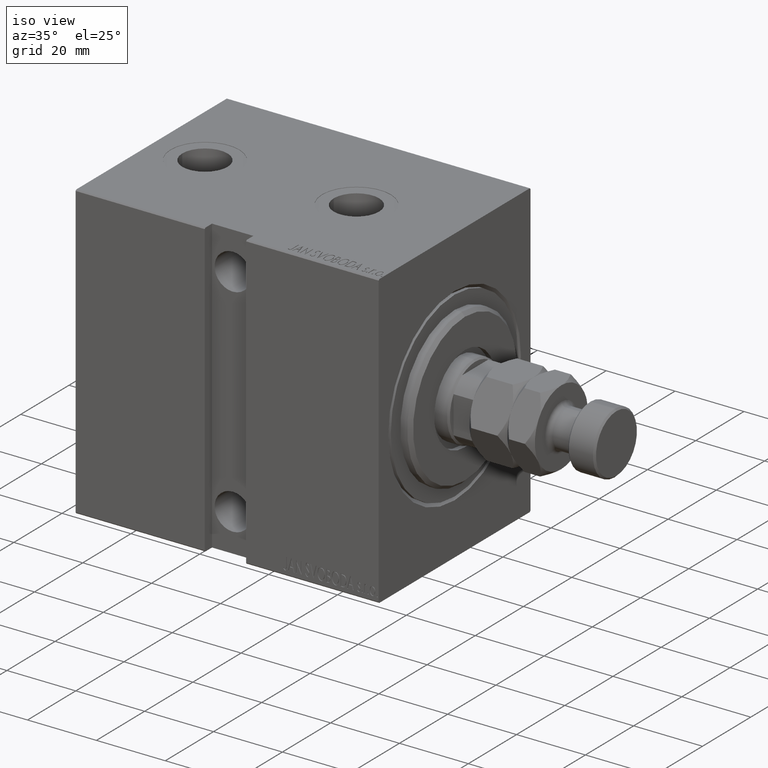
[diagram: clean part render]
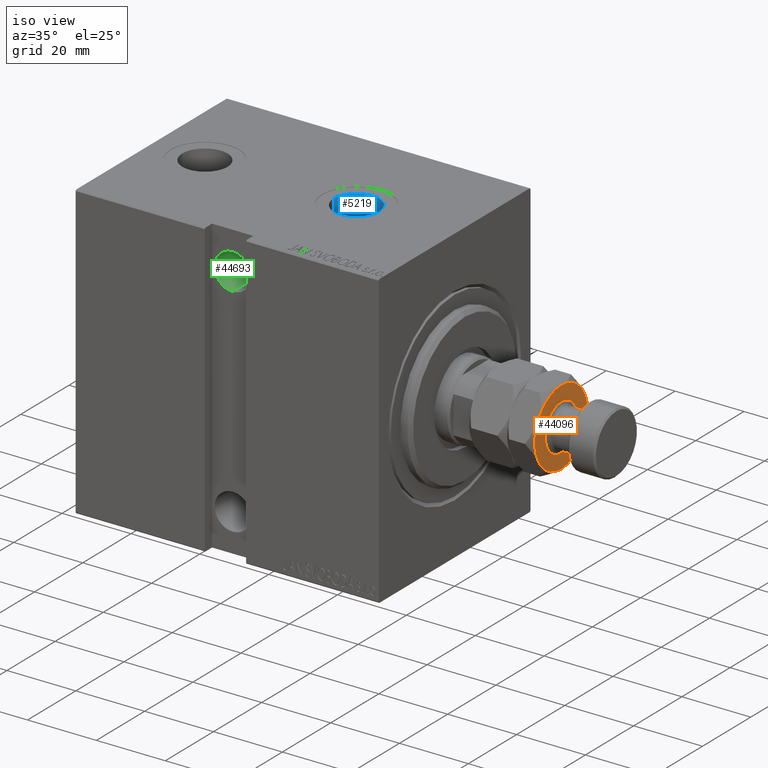
[diagram: same view with three faces highlighted in distinct colors, each labeled with its STEP entity id]
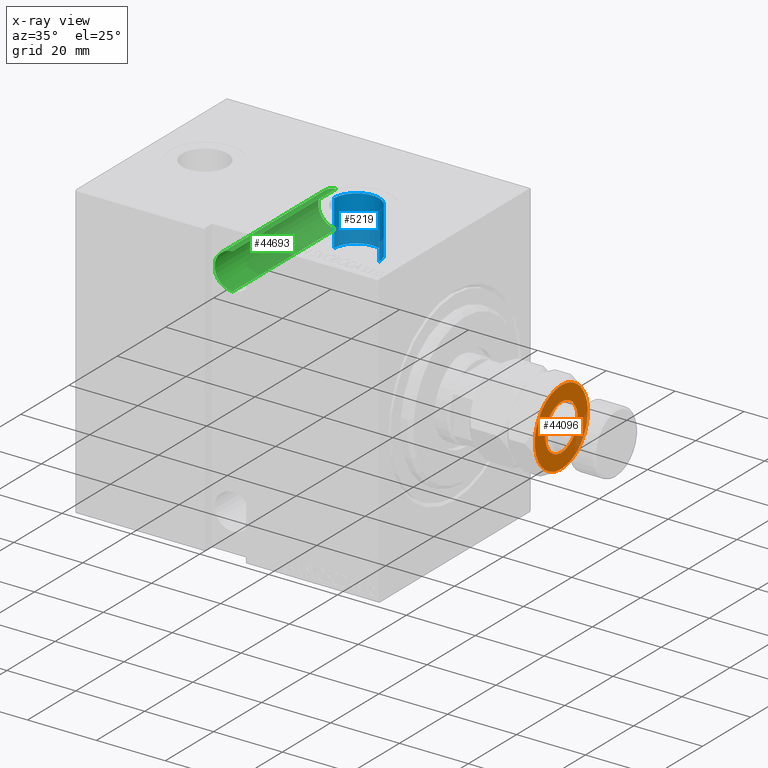
[diagram: x-ray of the same camera — body ghosted, the three highlighted faces saturated]
A machine part, iso view with three faces highlighted in distinct colors.
The next image is the same camera in x-ray (body ghosted, the three faces saturated) — at least one of them is partly hidden behind the body in this view.
Their STEP definitions:

[orange] entity #44096 — the highlighted planar face has unit normal (1, 0, -0).
#228 = CIRCLE ( 'NONE', #26035, 10.99999999999999289 ) ;
#926 = EDGE_CURVE ( 'NONE', #8722, #35789, #228, .T. ) ;
#1948 = EDGE_CURVE ( 'NONE', #38744, #30098, #20172, .T. ) ;
#2466 = DIRECTION ( 'NONE',  ( 0.000000000000000000, -0.000000000000000000, 1.000000000000000000 ) ) ;
#2862 = CARTESIAN_POINT ( 'NONE',  ( -6.699999999999999289, 8.205133554287265576E-16, 19.00000000000000000 ) ) ;
#3130 = DIRECTION ( 'NONE',  ( 0.000000000000000000, -0.000000000000000000, 1.000000000000000000 ) ) ;
#3864 = CARTESIAN_POINT ( 'NONE',  ( 0.000000000000000000, 0.000000000000000000, 19.00000000000000000 ) ) ;
#4231 = EDGE_CURVE ( 'NONE', #20887, #38744, #27585, .T. ) ;
#5482 = EDGE_LOOP ( 'NONE', ( #38574, #27490, #36172, #25081, #6296, #38009 ) ) ;
#6164 = DIRECTION ( 'NONE',  ( 1.000000000000000000, 0.000000000000000000, 0.000000000000000000 ) ) ;
#6296 = ORIENTED_EDGE ( 'NONE', *, *, #926, .T. ) ;
#7556 = FACE_OUTER_BOUND ( 'NONE', #5482, .T. ) ;
#8198 = EDGE_CURVE ( 'NONE', #35789, #20887, #16540, .T. ) ;
#8722 = VERTEX_POINT ( 'NONE', #26576 ) ;
#9508 = CARTESIAN_POINT ( 'NONE',  ( 5.499999999999999112, 9.526279441628817679, 19.00000000000000000 ) ) ;
#10650 = DIRECTION ( 'NONE',  ( 0.000000000000000000, 0.000000000000000000, 1.000000000000000000 ) ) ;
#10950 = EDGE_CURVE ( 'NONE', #37296, #39231, #30647, .T. ) ;
#12047 = AXIS2_PLACEMENT_3D ( 'NONE', #3864, #31797, #42679 ) ;
#12201 = CARTESIAN_POINT ( 'NONE',  ( 0.000000000000000000, 0.000000000000000000, 19.00000000000000000 ) ) ;
#12416 = DIRECTION ( 'NONE',  ( 1.000000000000000000, 0.000000000000000000, 0.000000000000000000 ) ) ;
#14251 = FACE_BOUND ( 'NONE', #27285, .T. ) ;
#16540 = CIRCLE ( 'NONE', #19583, 10.99999999999999289 ) ;
#17891 = DIRECTION ( 'NONE',  ( 1.000000000000000000, 0.000000000000000000, 0.000000000000000000 ) ) ;
#18555 = DIRECTION ( 'NONE',  ( 0.000000000000000000, -0.000000000000000000, 1.000000000000000000 ) ) ;
#19408 = AXIS2_PLACEMENT_3D ( 'NONE', #30328, #29870, #43994 ) ;
#19583 = AXIS2_PLACEMENT_3D ( 'NONE', #33433, #29972, #12416 ) ;
#19590 = DIRECTION ( 'NONE',  ( -0.000000000000000000, 0.000000000000000000, -1.000000000000000000 ) ) ;
#20172 = CIRCLE ( 'NONE', #35635, 10.99999999999999289 ) ;
#20635 = ORIENTED_EDGE ( 'NONE', *, *, #44690, .T. ) ;
#20887 = VERTEX_POINT ( 'NONE', #36700 ) ;
#21038 = CARTESIAN_POINT ( 'NONE',  ( 10.99999999999999289, 1.502314598737159031E-15, 19.00000000000000000 ) ) ;
#21184 = PLANE ( 'NONE',  #12047 ) ;
#22040 = CARTESIAN_POINT ( 'NONE',  ( 6.699999999999999289, 0.000000000000000000, 19.00000000000000000 ) ) ;
#22259 = DIRECTION ( 'NONE',  ( 1.000000000000000000, 0.000000000000000000, 0.000000000000000000 ) ) ;
#22864 = AXIS2_PLACEMENT_3D ( 'NONE', #41280, #2466, #6164 ) ;
#25081 = ORIENTED_EDGE ( 'NONE', *, *, #26859, .T. ) ;
#26035 = AXIS2_PLACEMENT_3D ( 'NONE', #35903, #18555, #22259 ) ;
#26286 = DIRECTION ( 'NONE',  ( 1.000000000000000000, 0.000000000000000000, 0.000000000000000000 ) ) ;
#26576 = CARTESIAN_POINT ( 'NONE',  ( -10.99999999999999289, 0.000000000000000000, 19.00000000000000000 ) ) ;
#26626 = CARTESIAN_POINT ( 'NONE',  ( 0.000000000000000000, 0.000000000000000000, 19.00000000000000000 ) ) ;
#26859 = EDGE_CURVE ( 'NONE', #35542, #8722, #37607, .T. ) ;
#27285 = EDGE_LOOP ( 'NONE', ( #29898, #20635 ) ) ;
#27490 = ORIENTED_EDGE ( 'NONE', *, *, #1948, .T. ) ;
#27511 = CIRCLE ( 'NONE', #28988, 10.99999999999999289 ) ;
#27585 = CIRCLE ( 'NONE', #37953, 10.99999999999999289 ) ;
#27833 = CARTESIAN_POINT ( 'NONE',  ( 0.000000000000000000, 0.000000000000000000, 19.00000000000000000 ) ) ;
#28415 = CARTESIAN_POINT ( 'NONE',  ( -5.500000000000000000, -9.526279441628824785, 19.00000000000000000 ) ) ;
#28988 = AXIS2_PLACEMENT_3D ( 'NONE', #27833, #3130, #17891 ) ;
#29870 = DIRECTION ( 'NONE',  ( -0.000000000000000000, 0.000000000000000000, -1.000000000000000000 ) ) ;
#29898 = ORIENTED_EDGE ( 'NONE', *, *, #10950, .T. ) ;
#29972 = DIRECTION ( 'NONE',  ( 0.000000000000000000, -0.000000000000000000, 1.000000000000000000 ) ) ;
#30098 = VERTEX_POINT ( 'NONE', #9508 ) ;
#30328 = CARTESIAN_POINT ( 'NONE',  ( 0.000000000000000000, 0.000000000000000000, 19.00000000000000000 ) ) ;
#30647 = CIRCLE ( 'NONE', #41713, 6.699999999999999289 ) ;
#31797 = DIRECTION ( 'NONE',  ( 0.000000000000000000, -0.000000000000000000, 1.000000000000000000 ) ) ;
#33433 = CARTESIAN_POINT ( 'NONE',  ( 0.000000000000000000, 0.000000000000000000, 19.00000000000000000 ) ) ;
#35542 = VERTEX_POINT ( 'NONE', #39566 ) ;
#35635 = AXIS2_PLACEMENT_3D ( 'NONE', #35820, #10650, #38604 ) ;
#35789 = VERTEX_POINT ( 'NONE', #28415 ) ;
#35820 = CARTESIAN_POINT ( 'NONE',  ( 0.000000000000000000, 0.000000000000000000, 19.00000000000000000 ) ) ;
#35903 = CARTESIAN_POINT ( 'NONE',  ( 0.000000000000000000, 0.000000000000000000, 19.00000000000000000 ) ) ;
#36172 = ORIENTED_EDGE ( 'NONE', *, *, #39541, .T. ) ;
#36700 = CARTESIAN_POINT ( 'NONE',  ( 5.499999999999998224, -9.526279441628817679, 19.00000000000000000 ) ) ;
#37263 = DIRECTION ( 'NONE',  ( 0.000000000000000000, -0.000000000000000000, 1.000000000000000000 ) ) ;
#37296 = VERTEX_POINT ( 'NONE', #22040 ) ;
#37607 = CIRCLE ( 'NONE', #22864, 10.99999999999999289 ) ;
#37953 = AXIS2_PLACEMENT_3D ( 'NONE', #26626, #37263, #40735 ) ;
#38009 = ORIENTED_EDGE ( 'NONE', *, *, #8198, .T. ) ;
#38574 = ORIENTED_EDGE ( 'NONE', *, *, #4231, .T. ) ;
#38604 = DIRECTION ( 'NONE',  ( 1.000000000000000000, 0.000000000000000000, 0.000000000000000000 ) ) ;
#38744 = VERTEX_POINT ( 'NONE', #21038 ) ;
#39231 = VERTEX_POINT ( 'NONE', #2862 ) ;
#39541 = EDGE_CURVE ( 'NONE', #30098, #35542, #27511, .T. ) ;
#39566 = CARTESIAN_POINT ( 'NONE',  ( -5.499999999999997335, 9.526279441628819455, 19.00000000000000000 ) ) ;
#40086 = CIRCLE ( 'NONE', #19408, 6.699999999999999289 ) ;
#40735 = DIRECTION ( 'NONE',  ( 1.000000000000000000, 0.000000000000000000, 0.000000000000000000 ) ) ;
#41280 = CARTESIAN_POINT ( 'NONE',  ( 0.000000000000000000, 0.000000000000000000, 19.00000000000000000 ) ) ;
#41713 = AXIS2_PLACEMENT_3D ( 'NONE', #12201, #19590, #26286 ) ;
#42679 = DIRECTION ( 'NONE',  ( 1.000000000000000000, 0.000000000000000000, -0.000000000000000000 ) ) ;
#43994 = DIRECTION ( 'NONE',  ( 1.000000000000000000, 0.000000000000000000, 0.000000000000000000 ) ) ;
#44096 = ADVANCED_FACE ( 'NONE', ( #14251, #7556 ), #21184, .T. ) ;
#44690 = EDGE_CURVE ( 'NONE', #39231, #37296, #40086, .T. ) ;

[blue] entity #5219 — the highlighted cylindrical surface (edge-blend (fillet) strip) has radius 6.58 mm, axis along (0, 0, 1).
#551 = VERTEX_POINT ( 'NONE', #11713 ) ;
#1079 = AXIS2_PLACEMENT_3D ( 'NONE', #41599, #16859, #24245 ) ;
#3233 = CYLINDRICAL_SURFACE ( 'NONE', #1079, 6.579999999999999183 ) ;
#5219 = ADVANCED_FACE ( 'NONE', ( #30720 ), #3233, .F. ) ;
#6026 = EDGE_CURVE ( 'NONE', #41705, #17511, #8875, .T. ) ;
#7989 = EDGE_LOOP ( 'NONE', ( #26588, #43016, #12414, #15078 ) ) ;
#8481 = DIRECTION ( 'NONE',  ( 1.000000000000000000, 0.000000000000000000, 0.000000000000000000 ) ) ;
#8875 = LINE ( 'NONE', #20163, #13607 ) ;
#11713 = CARTESIAN_POINT ( 'NONE',  ( 21.92000000000000171, -8.556182117781905894E-15, 29.23999999999999488 ) ) ;
#12097 = VERTEX_POINT ( 'NONE', #24641 ) ;
#12414 = ORIENTED_EDGE ( 'NONE', *, *, #45148, .T. ) ;
#12738 = CIRCLE ( 'NONE', #38567, 6.579999999999999183 ) ;
#12970 = CARTESIAN_POINT ( 'NONE',  ( 21.92000000000000171, -8.556182117781905894E-15, 29.23999999999999488 ) ) ;
#13607 = VECTOR ( 'NONE', #19711, 1000.000000000000000 ) ;
#14981 = AXIS2_PLACEMENT_3D ( 'NONE', #26005, #40116, #8481 ) ;
#15078 = ORIENTED_EDGE ( 'NONE', *, *, #6026, .F. ) ;
#16409 = VECTOR ( 'NONE', #30293, 1000.000000000000000 ) ;
#16859 = DIRECTION ( 'NONE',  ( -0.000000000000000000, -0.000000000000000000, 1.000000000000000000 ) ) ;
#17511 = VERTEX_POINT ( 'NONE', #26591 ) ;
#18489 = CARTESIAN_POINT ( 'NONE',  ( 35.07999999999999829, -9.361999711620863359E-15, 29.23999999999999488 ) ) ;
#19711 = DIRECTION ( 'NONE',  ( -0.000000000000000000, -0.000000000000000000, 1.000000000000000000 ) ) ;
#20055 = DIRECTION ( 'NONE',  ( 1.000000000000000000, 0.000000000000000000, 0.000000000000000000 ) ) ;
#20163 = CARTESIAN_POINT ( 'NONE',  ( 35.07999999999999829, -9.361999711620863359E-15, 29.23999999999999488 ) ) ;
#24245 = DIRECTION ( 'NONE',  ( 1.000000000000000000, 0.000000000000000000, 0.000000000000000000 ) ) ;
#24641 = CARTESIAN_POINT ( 'NONE',  ( 21.92000000000000171, -8.556182117781905894E-15, 42.39999999999999147 ) ) ;
#26005 = CARTESIAN_POINT ( 'NONE',  ( 28.50000000000000000, -9.361999711620863359E-15, 42.39999999999999147 ) ) ;
#26588 = ORIENTED_EDGE ( 'NONE', *, *, #43951, .F. ) ;
#26591 = CARTESIAN_POINT ( 'NONE',  ( 35.07999999999999829, -9.361999711620863359E-15, 42.39999999999999147 ) ) ;
#27282 = LINE ( 'NONE', #12970, #16409 ) ;
#30293 = DIRECTION ( 'NONE',  ( -0.000000000000000000, -0.000000000000000000, 1.000000000000000000 ) ) ;
#30720 = FACE_OUTER_BOUND ( 'NONE', #7989, .T. ) ;
#34909 = CIRCLE ( 'NONE', #14981, 6.579999999999999183 ) ;
#38552 = EDGE_CURVE ( 'NONE', #551, #12097, #27282, .T. ) ;
#38567 = AXIS2_PLACEMENT_3D ( 'NONE', #41994, #44578, #20055 ) ;
#40116 = DIRECTION ( 'NONE',  ( 0.000000000000000000, 0.000000000000000000, 1.000000000000000000 ) ) ;
#41599 = CARTESIAN_POINT ( 'NONE',  ( 28.50000000000000000, -9.361999711620863359E-15, 29.23999999999999488 ) ) ;
#41705 = VERTEX_POINT ( 'NONE', #18489 ) ;
#41994 = CARTESIAN_POINT ( 'NONE',  ( 28.50000000000000000, -9.361999711620863359E-15, 29.23999999999999488 ) ) ;
#43016 = ORIENTED_EDGE ( 'NONE', *, *, #38552, .T. ) ;
#43951 = EDGE_CURVE ( 'NONE', #551, #41705, #12738, .T. ) ;
#44578 = DIRECTION ( 'NONE',  ( 0.000000000000000000, 0.000000000000000000, 1.000000000000000000 ) ) ;
#45148 = EDGE_CURVE ( 'NONE', #12097, #17511, #34909, .T. ) ;

[green] entity #44693 — the highlighted cylindrical surface (edge-blend (fillet) strip) has radius 5.25 mm, axis along (0, -1, 0).
#1709 = ORIENTED_EDGE ( 'NONE', *, *, #18774, .F. ) ;
#1930 = DIRECTION ( 'NONE',  ( -0.000000000000000000, 1.000000000000000000, -0.000000000000000000 ) ) ;
#2316 = EDGE_CURVE ( 'NONE', #42997, #9952, #32513, .T. ) ;
#2479 = VERTEX_POINT ( 'NONE', #3606 ) ;
#2561 = EDGE_CURVE ( 'NONE', #9952, #2479, #28304, .T. ) ;
#3606 = CARTESIAN_POINT ( 'NONE',  ( 44.50000000000002132, 28.50000000000001066, 36.75000000000000000 ) ) ;
#4404 = ORIENTED_EDGE ( 'NONE', *, *, #10495, .T. ) ;
#4595 = CARTESIAN_POINT ( 'NONE',  ( 44.50000000000002132, -14.49999999999998757, 26.25000000000000355 ) ) ;
#4806 = VECTOR ( 'NONE', #25196, 1000.000000000000000 ) ;
#9302 = CARTESIAN_POINT ( 'NONE',  ( 44.50000000000002132, -14.49999999999998401, 36.75000000000000000 ) ) ;
#9952 = VERTEX_POINT ( 'NONE', #21107 ) ;
#10495 = EDGE_CURVE ( 'NONE', #27328, #2479, #35375, .T. ) ;
#10885 = CARTESIAN_POINT ( 'NONE',  ( 44.50000000000002132, -31.50000000000002842, 36.75000000000000000 ) ) ;
#16016 = FACE_OUTER_BOUND ( 'NONE', #27020, .T. ) ;
#18467 = DIRECTION ( 'NONE',  ( -0.000000000000000000, 1.000000000000000000, -1.963837897332234442E-16 ) ) ;
#18643 = CARTESIAN_POINT ( 'NONE',  ( 44.50000000000002132, -31.50000000000002842, 26.25000000000000355 ) ) ;
#18774 = EDGE_CURVE ( 'NONE', #27328, #42997, #35264, .T. ) ;
#20883 = AXIS2_PLACEMENT_3D ( 'NONE', #23400, #1930, #33791 ) ;
#21107 = CARTESIAN_POINT ( 'NONE',  ( 44.50000000000002132, 28.50000000000001066, 26.25000000000000355 ) ) ;
#23400 = CARTESIAN_POINT ( 'NONE',  ( 44.50000000000002132, -31.50000000000002842, 31.50000000000000000 ) ) ;
#25196 = DIRECTION ( 'NONE',  ( -0.000000000000000000, 1.000000000000000000, -0.000000000000000000 ) ) ;
#26066 = VECTOR ( 'NONE', #32735, 1000.000000000000000 ) ;
#26863 = CYLINDRICAL_SURFACE ( 'NONE', #20883, 5.249999999999997335 ) ;
#27020 = EDGE_LOOP ( 'NONE', ( #38308, #1709, #4404, #29714 ) ) ;
#27328 = VERTEX_POINT ( 'NONE', #9302 ) ;
#28077 = DIRECTION ( 'NONE',  ( 0.000000000000000000, -1.000000000000000000, 0.000000000000000000 ) ) ;
#28304 = CIRCLE ( 'NONE', #30518, 5.249999999999997335 ) ;
#28636 = CARTESIAN_POINT ( 'NONE',  ( 44.50000000000002132, -14.49999999999998579, 31.50000000000000000 ) ) ;
#29714 = ORIENTED_EDGE ( 'NONE', *, *, #2561, .F. ) ;
#30518 = AXIS2_PLACEMENT_3D ( 'NONE', #31539, #28077, #42652 ) ;
#31539 = CARTESIAN_POINT ( 'NONE',  ( 44.50000000000002132, 28.50000000000001066, 31.50000000000000000 ) ) ;
#32513 = LINE ( 'NONE', #18643, #26066 ) ;
#32554 = DIRECTION ( 'NONE',  ( 0.000000000000000000, -3.304235192336776991E-16, -1.000000000000000000 ) ) ;
#32735 = DIRECTION ( 'NONE',  ( -0.000000000000000000, 1.000000000000000000, -0.000000000000000000 ) ) ;
#33791 = DIRECTION ( 'NONE',  ( 0.000000000000000000, 0.000000000000000000, 1.000000000000000000 ) ) ;
#35264 = CIRCLE ( 'NONE', #44169, 5.249999999999997335 ) ;
#35375 = LINE ( 'NONE', #10885, #4806 ) ;
#38308 = ORIENTED_EDGE ( 'NONE', *, *, #2316, .F. ) ;
#42652 = DIRECTION ( 'NONE',  ( 0.000000000000000000, 0.000000000000000000, -1.000000000000000000 ) ) ;
#42997 = VERTEX_POINT ( 'NONE', #4595 ) ;
#44169 = AXIS2_PLACEMENT_3D ( 'NONE', #28636, #18467, #32554 ) ;
#44693 = ADVANCED_FACE ( 'NONE', ( #16016 ), #26863, .F. ) ;